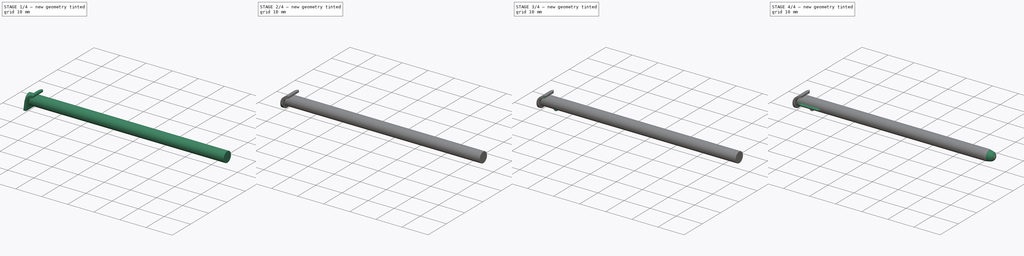
[diagram: build sequence overview — one tinted view per stage of 4, left to right]
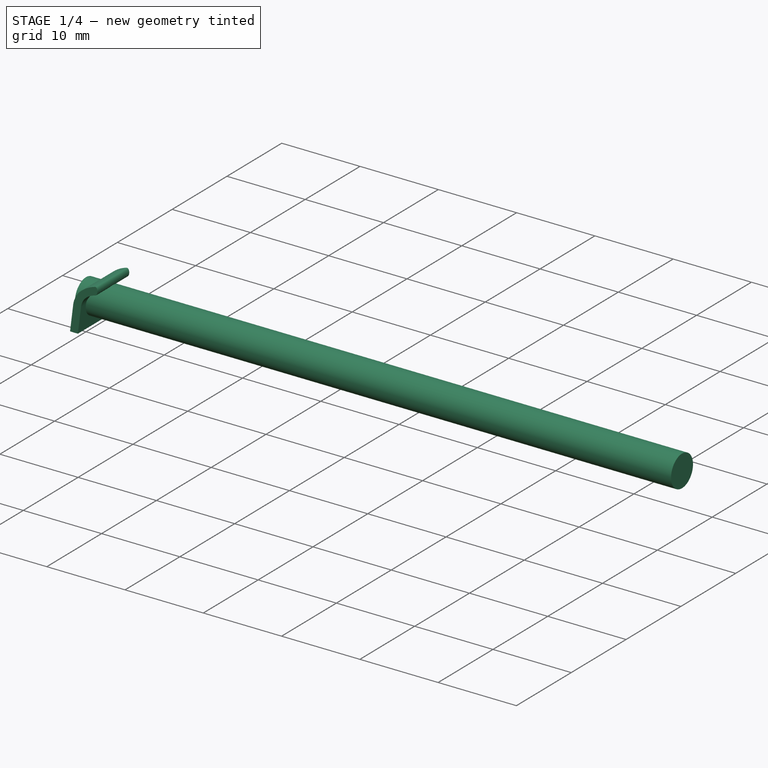
[diagram: stage 1 of 4 — iso view after this stage's code; geometry added in this stage tinted green]
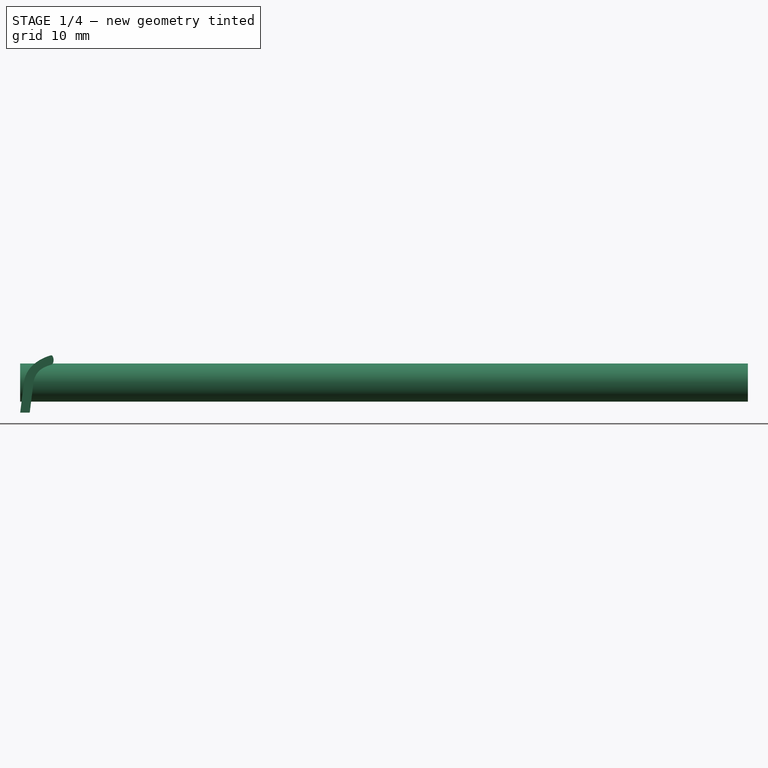
[diagram: stage 1 of 4 — front view after this stage's code; geometry added in this stage tinted green]
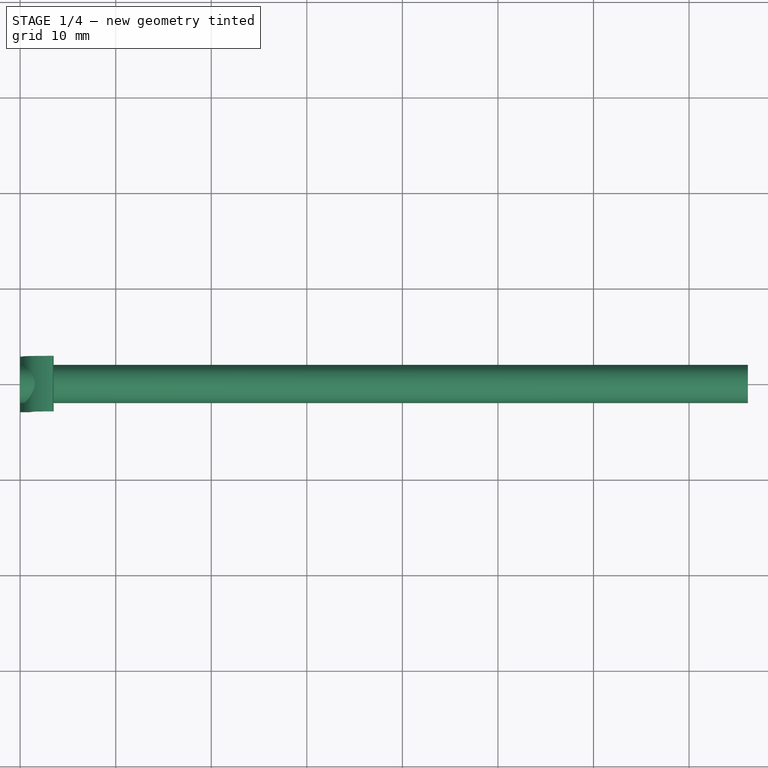
[diagram: stage 1 of 4 — top view after this stage's code; geometry added in this stage tinted green]
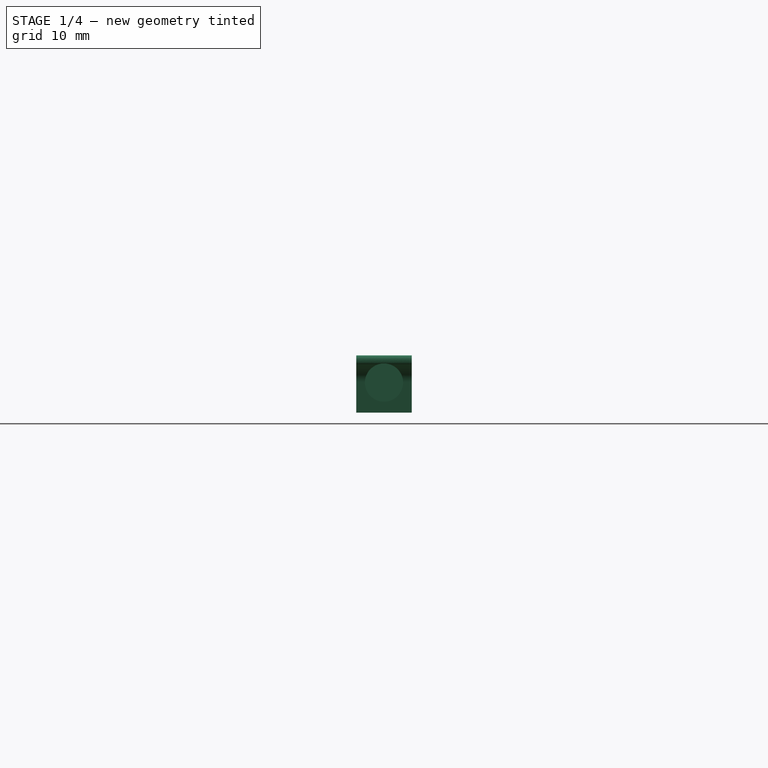
[diagram: stage 1 of 4 — right view after this stage's code; geometry added in this stage tinted green]
FCSTD DOCUMENT  (FreeCAD 1.0R39109 (Git))
Label: New 3DS Stylus
License: Creative Commons Attribution-NonCommercial-ShareAlike
LicenseURL: http://creativecommons.org/licenses/by-nc-sa/4.0/
objects: Sketcher::SketchObject×8, PartDesign::Pocket×4, PartDesign::Pad×3, PartDesign::Fillet×1, PartDesign::Groove×1, PartDesign::Body×1
note: 44 computed .brp shape members not serialized (recipe doc carries the construction recipe); baked Part::Feature solids carry a one-line shape summary decoded from their .brp

FEATURE [Sketcher::SketchObject] Sketch
  ArcFitTolerance = 0
  AttachmentSupport = -> [YZ_Plane]
  FullyConstrained = true
  MakeInternals = false
  MapMode = 5
  Placement = pos=(0,0,0) rot=(0.57735,0.57735,0.57735;2.0944rad)
  sketch-geometry (1):
    g0: Circle CenterX=0 CenterY=0 CenterZ=0 NormalX=0 NormalY=0 NormalZ=1 AngleXU=0 Radius=2
  constraints (2):
    c: Coincident(g0,g-1)
    c: Diameter(g0) = 4
FEATURE [PartDesign::Pad] Pad
  Direction = (1,0,0)
  Length = 76.15
  Length2 = 10
  Placement = pos=(0,0,0) rot=(0.57735,0.57735,0.57735;2.0944rad)
  Profile = -> Sketch
  ReferenceAxis = -> Sketch [N_Axis]
  Suppressed = false
  Type = 0
FEATURE [Sketcher::SketchObject] Sketch001
  ArcFitTolerance = 0
  AttachmentSupport = -> [XZ_Plane]
  ExternalGeometry = -> [Pad]
  FullyConstrained = true
  MakeInternals = false
  MapMode = 5
  Placement = pos=(0,0,0) rot=(1,0,0;1.5708rad)
  sketch-geometry (24):
    g0: LineSegment StartX=0 StartY=-3.15 StartZ=0 EndX=1 EndY=-3.15 EndZ=0
    g1: LineSegment [constr] StartX=1.1e-15 StartY=-2 StartZ=0 EndX=0 EndY=-3.15 EndZ=0
    g2: LineSegment [constr] StartX=-9e-16 StartY=2 StartZ=0 EndX=10 EndY=2 EndZ=0
    g3: LineSegment [constr] StartX=0 StartY=-3.15 StartZ=0 EndX=-5e-16 EndY=0.85 EndZ=0
    g4: LineSegment [constr] StartX=-5e-16 StartY=0.85 StartZ=0 EndX=0.5 EndY=0.85 EndZ=0
    g5: LineSegment [constr] StartX=0.5 StartY=0.85 StartZ=0 EndX=1.5 EndY=0.85 EndZ=0
    g6: LineSegment [constr] StartX=0 StartY=-3.15 StartZ=0 EndX=0.5 EndY=0.85 EndZ=0
    g7: LineSegment [constr] StartX=1 StartY=-3.15 StartZ=0 EndX=1.5 EndY=0.85 EndZ=0
    g8: ArcOfCircle [constr] CenterX=4.24663 CenterY=-1.855 CenterZ=0 NormalX=0 NormalY=0 NormalZ=1 AngleXU=0 Radius=3.855 StartAngle=1.5708 EndAngle=2.36383
    g9: LineSegment [constr] StartX=4.24663 StartY=2 StartZ=0 EndX=4.24663 EndY=3 EndZ=0
    g10: ArcOfCircle [constr] CenterX=4.40547 CenterY=-1.61627 CenterZ=0 NormalX=0 NormalY=0 NormalZ=1 AngleXU=0 Radius=4.619 StartAngle=1.60519 EndAngle=2.57834
    g11: LineSegment StartX=0 StartY=-3.15 StartZ=0 EndX=0.393875 EndY=0.00100004 EndZ=0
    g12: LineSegment StartX=1 StartY=-3.15 StartZ=0 EndX=1.39807 EndY=0.0345675 EndZ=0
    g13: ArcOfCircle CenterX=3.38263 CenterY=-0.213502 CenterZ=0 NormalX=0 NormalY=0 NormalZ=1 AngleXU=0 Radius=2 StartAngle=2.0553 EndAngle=3.01724
    g14: ArcOfCircle CenterX=3.37071 CenterY=-0.371104 CenterZ=0 NormalX=0 NormalY=0 NormalZ=1 AngleXU=0 Radius=3 StartAngle=2.26417 EndAngle=3.01724
    g15: LineSegment [constr] StartX=3.49663 StartY=2.36153 StartZ=0 EndX=4.24663 EndY=2.36153 EndZ=0
    g16: ArcOfCircle CenterX=4.24663 CenterY=-1.855 CenterZ=0 NormalX=0 NormalY=0 NormalZ=1 AngleXU=0 Radius=3.855 StartAngle=1.82439 EndAngle=2.0553
    g17: ArcOfCircle CenterX=4.40547 CenterY=-1.61627 CenterZ=0 NormalX=0 NormalY=0 NormalZ=1 AngleXU=0 Radius=4.619 StartAngle=1.83197 EndAngle=2.26417
    g18: LineSegment [constr] StartX=3.49663 StartY=2.36153 StartZ=0 EndX=3.24663 EndY=2.36153 EndZ=0
    g19: ArcOfEllipse CenterX=3.24663 CenterY=2.36153 CenterZ=0 NormalX=0 NormalY=0 NormalZ=1 MajorRadius=0.489064 MinorRadius=0.25 AngleXU=-1.5708 StartAngle=0.131718 EndAngle=3.27738
    g20: LineSegment [constr] StartX=3.24663 StartY=1.87247 StartZ=0 EndX=3.24663 EndY=2.8506 EndZ=0
    g21: LineSegment [constr] StartX=3.49663 StartY=2.36153 StartZ=0 EndX=2.99663 EndY=2.36153 EndZ=0
    g22: GeomPoint [constr] X=3.24663 Y=1.94119 Z=0
    g23: GeomPoint [constr] X=3.24663 Y=2.78187 Z=0
  constraints (59):
    c: PointOnObject(g0,g-2)
    c: Horizontal(g0)
    c: Distance(g0) = 1
    c: Coincident(g1,g-3)
    c: Coincident(g1,g0)
    c: Distance(g1) = 1.15
    c: Coincident(g2,g-3)
    c: Horizontal(g2)
    c: Coincident(g3,g0)
    c: PointOnObject(g3,g-3)
    c: Distance(g3) = 4
    c: Coincident(g4,g3)
    c: Horizontal(g4)
    c: Distance(g4) = 0.5
    c: Coincident(g5,g4)
    c: Horizontal(g5)
    c: Distance(g5) = 1
    c: Coincident(g6,g0)
    c: Coincident(g6,g4)
    c: Coincident(g7,g0)
    c: Coincident(g7,g5)
    c: Coincident(g8,g7)
    c: Diameter(g8) = 7.71
    c: Tangent(g8,g2) = 1.5708
    c: Coincident(g9,g8)
    c: Vertical(g9)
    c: Coincident(g10,g6)
    c: Coincident(g10,g9)
    c: Distance(g9) = 1
    c: Radius(g10) = 4.619
    c: Coincident(g11,g0)
    c: Coincident(g12,g0)
    c: Tangent(g12,g13) = 1.5708
    c: Tangent(g11,g14) = 1.5708
    c: Radius(g13) = 2
    c: Radius(g14) = 3
    c: PointOnObject(g11,g6)
    c: PointOnObject(g12,g7)
    c: PointOnObject(g17,g10)
    c: PointOnObject(g16,g8)
    c: PointOnObject(g15,g9)
    c: Horizontal(g15)
    c: Distance(g15) = 0.75
    c: PointOnObject(g14,g10)
    c: PointOnObject(g13,g8)
    c: Equal(g17,g10)
    c: Equal(g16,g8)
    c: Tangent(g16,g13) = -1.5708
    c: Tangent(g17,g14) = -1.5708
    c: Coincident(g18,g15)
    c: Horizontal(g18)
    c: Distance(g18) = 0.25
    c: InternalAlignment(g20-g23 -> g19) x4
    c: Coincident(g19,g18)
    c: PointOnObject(g15,g19)
    c: Tangent(g19,g16) = 1.5708
    c: Tangent(g19,g17) = -1.5708
    c: Vertical(g20)
    c: Distance(g2) = 10
FEATURE [PartDesign::Pad] Pad001
  BaseFeature = -> Pad
  Direction = (0,-1,2e-16)
  Length = 2.9
  Length2 = 2.9
  Placement = pos=(0,0,0) rot=(0.57735,0.57735,0.57735;2.0944rad)
  Profile = -> Sketch001
  ReferenceAxis = -> Sketch001 [N_Axis]
  Refine = true
  Suppressed = false
  Type = 4
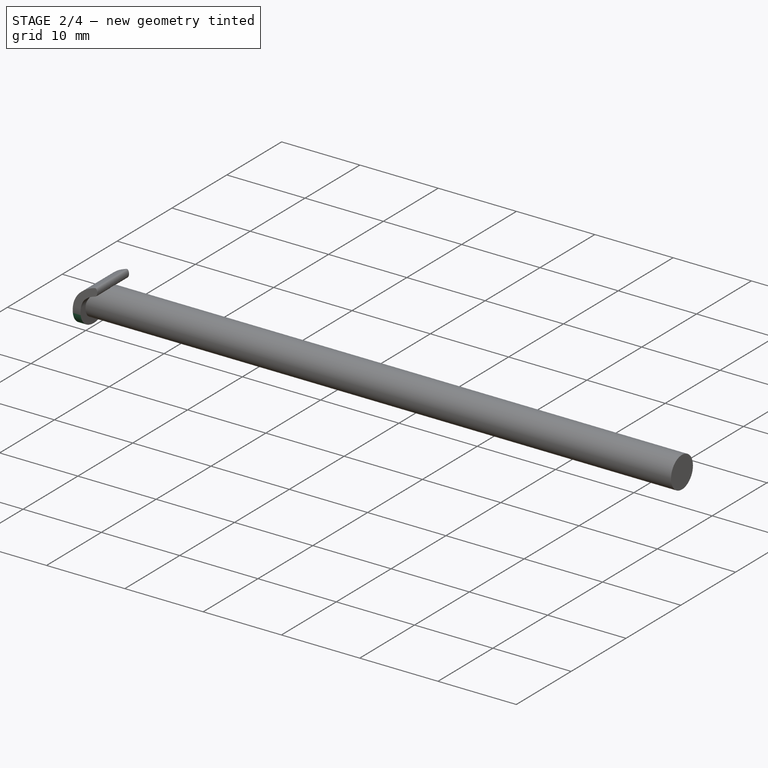
[diagram: stage 2 of 4 — iso view after this stage's code; geometry added in this stage tinted green]
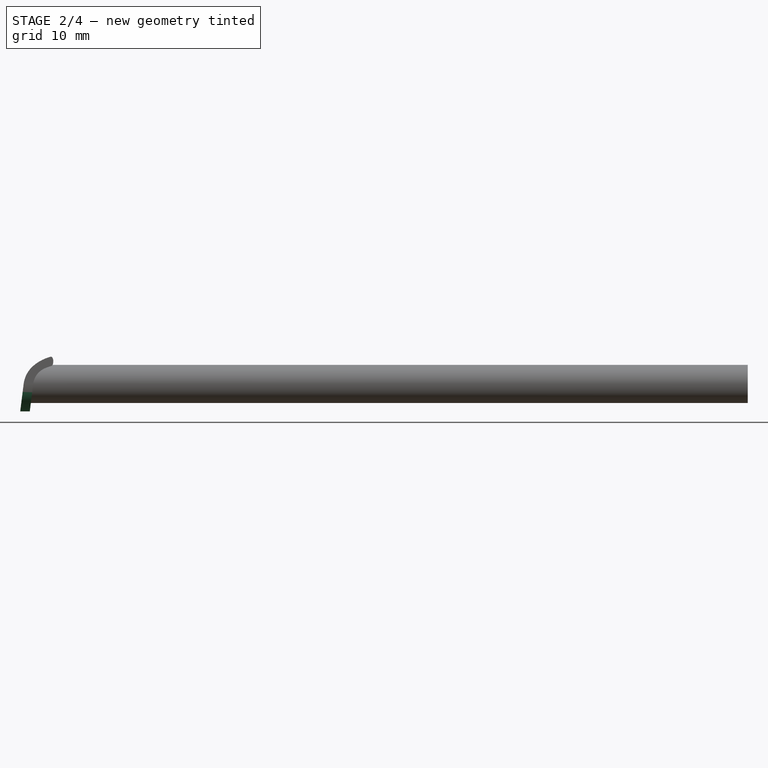
[diagram: stage 2 of 4 — front view after this stage's code; geometry added in this stage tinted green]
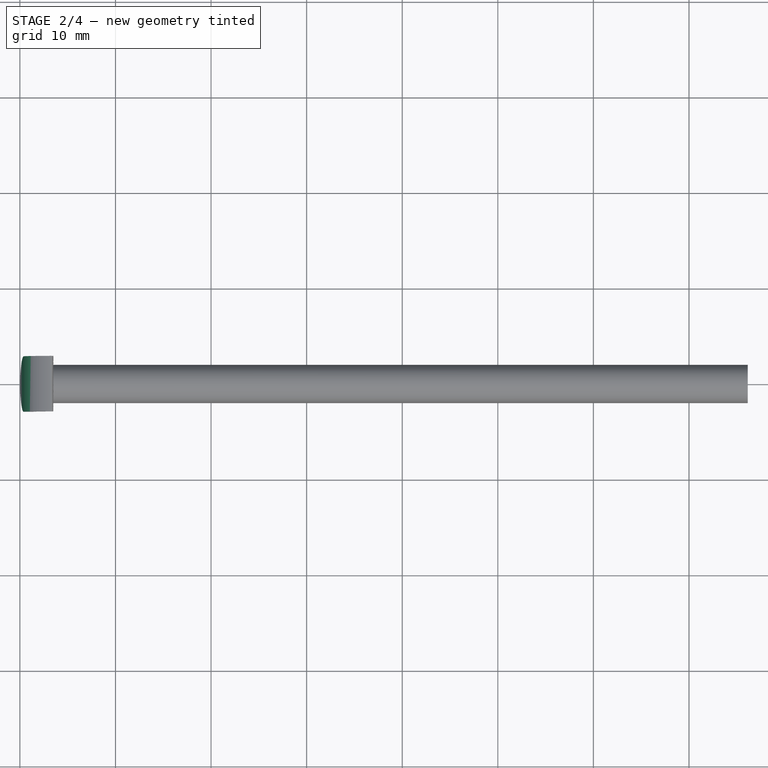
[diagram: stage 2 of 4 — top view after this stage's code; geometry added in this stage tinted green]
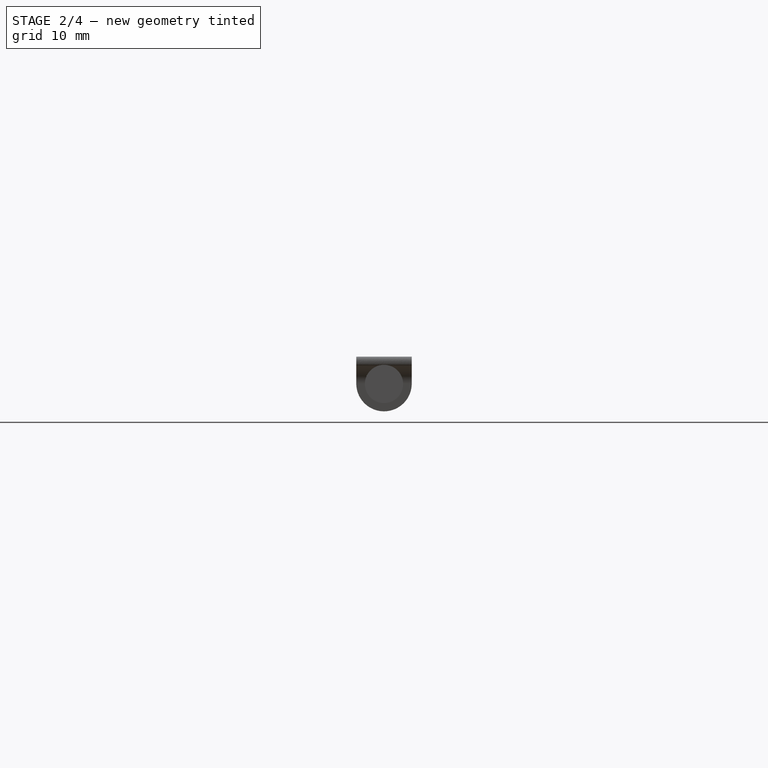
[diagram: stage 2 of 4 — right view after this stage's code; geometry added in this stage tinted green]
FEATURE [Sketcher::SketchObject] Sketch002
  ArcFitTolerance = 0
  AttachmentSupport = -> [Pad001]
  ExternalGeometry = -> [Pad001]
  FullyConstrained = true
  MakeInternals = false
  MapMode = 5
  Placement = pos=(0,-2.9,1e-15) rot=(0.57735,0.57735,-0.57735;2.0944rad)
  sketch-geometry (6):
    g0: ArcOfCircle CenterX=1.61627 CenterY=4.40547 CenterZ=0 NormalX=0 NormalY=0 NormalZ=1 AngleXU=0 Radius=4.619 StartAngle=3.40276 EndAngle=3.83497
    g1: ArcOfCircle CenterX=0.371104 CenterY=3.37071 CenterZ=0 NormalX=0 NormalY=0 NormalZ=1 AngleXU=0 Radius=3 StartAngle=3.83497 EndAngle=4.58803
    g2: LineSegment StartX=-0.00100004 StartY=0.393875 StartZ=0 EndX=3.15 EndY=1.1e-15 EndZ=0
    g3: LineSegment StartX=3.15 StartY=1.1e-15 StartZ=0 EndX=3.15 EndY=-1 EndZ=0
    g4: LineSegment StartX=3.15 StartY=-1 StartZ=0 EndX=-2.84609 EndY=-1 EndZ=0
    g5: LineSegment StartX=-2.84609 StartY=-1 StartZ=0 EndX=-2.84609 EndY=3.21279 EndZ=0
  constraints (16):
    c: Coincident(g0,g-6)
    c: Coincident(g0,g-6)
    c: Coincident(g1,g0)
    c: Coincident(g1,g-5)
    c: Coincident(g2,g1)
    c: Coincident(g2,g-4)
    c: Coincident(g3,g2)
    c: Vertical(g3)
    c: Coincident(g4,g3)
    c: Horizontal(g4)
    c: Coincident(g5,g4)
    c: Coincident(g5,g0)
    c: Vertical(g5)
    c: Distance(g3) = 1
    c: Equal(g1,g-5)
    c: Equal(g0,g-6)
FEATURE [PartDesign::Pocket] Pocket
  BaseFeature = -> Pad001
  Direction = (0,1,0)
  Length = 10
  Length2 = 5
  Placement = pos=(0,0,0) rot=(0.57735,0.57735,0.57735;2.0944rad)
  Profile = -> Sketch002
  ReferenceAxis = -> Sketch002 [N_Axis]
  Refine = true
  Suppressed = false
  Type = 0
FEATURE [Sketcher::SketchObject] Sketch003
  ArcFitTolerance = 0
  AttachmentSupport = -> [YZ_Plane]
  ExternalGeometry = -> [Pocket]
  FullyConstrained = true
  MakeInternals = false
  MapMode = 5
  Placement = pos=(0,0,0) rot=(0.57735,0.57735,0.57735;2.0944rad)
  sketch-geometry (5):
    g0: Circle [constr] CenterX=-5.07e-14 CenterY=2.54e-14 CenterZ=0 NormalX=0 NormalY=0 NormalZ=1 AngleXU=0 Radius=2.9
    g1: LineSegment StartX=-2.9 StartY=0.0345675 StartZ=0 EndX=-2.9 EndY=-3.15 EndZ=0
    g2: LineSegment StartX=-2.9 StartY=-3.15 StartZ=0 EndX=2.9 EndY=-3.15 EndZ=0
    g3: LineSegment StartX=2.9 StartY=-3.15 StartZ=0 EndX=2.9 EndY=0.0345675 EndZ=0
    g4: ArcOfCircle CenterX=-1e-16 CenterY=0.0345847 CenterZ=0 NormalX=0 NormalY=0 NormalZ=1 AngleXU=0 Radius=2.9 StartAngle=3.1416 EndAngle=6.28318
  constraints (11):
    c: Coincident(g0,g-7)
    c: Tangent(g0,g-4)
    c: Coincident(g1,g-6)
    c: Coincident(g1,g-3)
    c: Coincident(g2,g1)
    c: Coincident(g2,g-4)
    c: Coincident(g3,g2)
    c: Coincident(g3,g-5)
    c: Coincident(g4,g1)
    c: Coincident(g4,g3)
    c: Equal(g4,g0)
FEATURE [PartDesign::Pocket] Pocket001
  BaseFeature = -> Pocket
  Direction = (-1,0,0)
  Length = 5
  Length2 = 5
  Placement = pos=(0,0,0) rot=(0.57735,0.57735,0.57735;2.0944rad)
  Profile = -> Sketch003
  ReferenceAxis = -> Sketch003 [N_Axis]
  Reversed = true
  Suppressed = false
  Type = 0
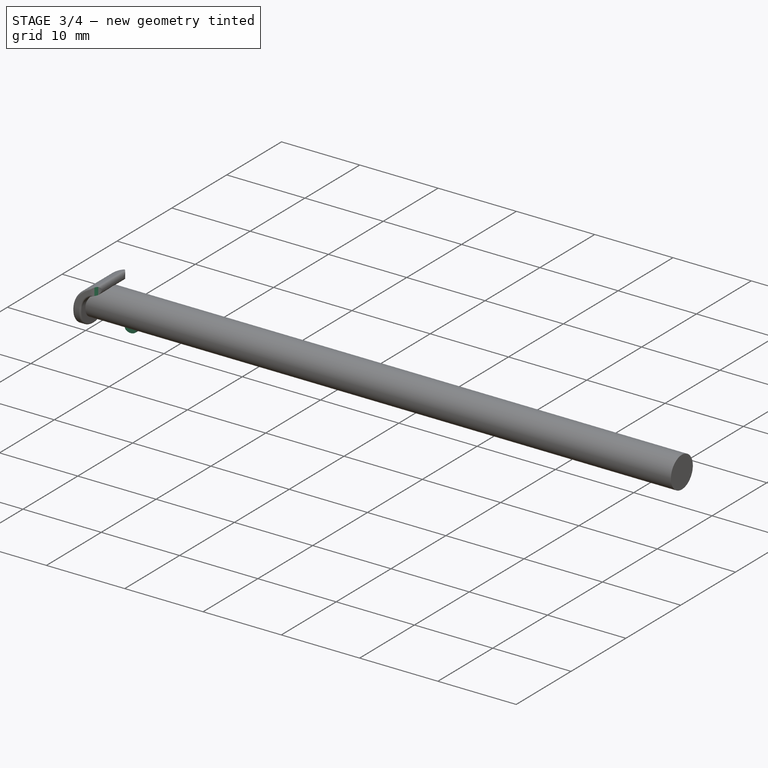
[diagram: stage 3 of 4 — iso view after this stage's code; geometry added in this stage tinted green]
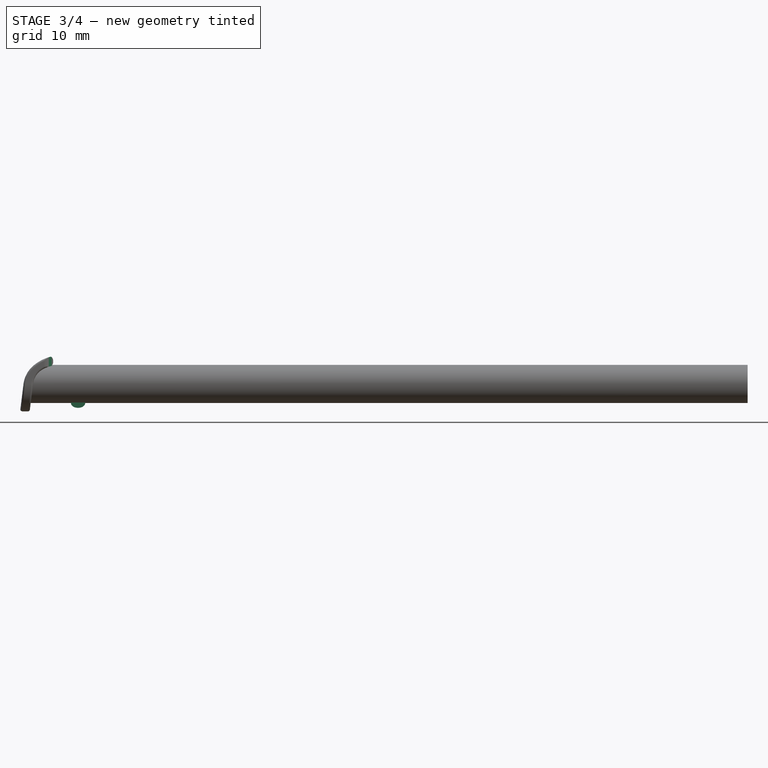
[diagram: stage 3 of 4 — front view after this stage's code; geometry added in this stage tinted green]
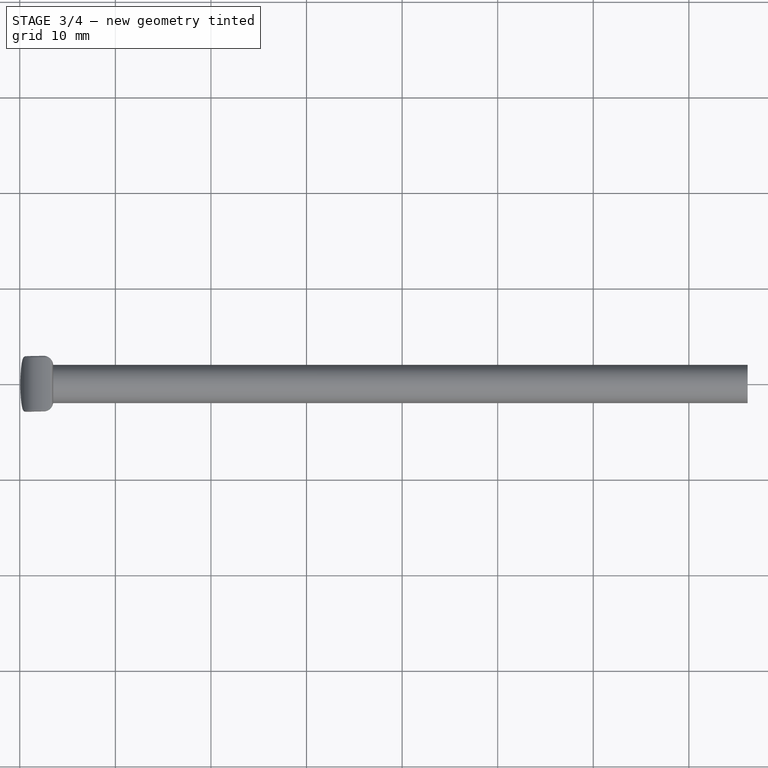
[diagram: stage 3 of 4 — top view after this stage's code; geometry added in this stage tinted green]
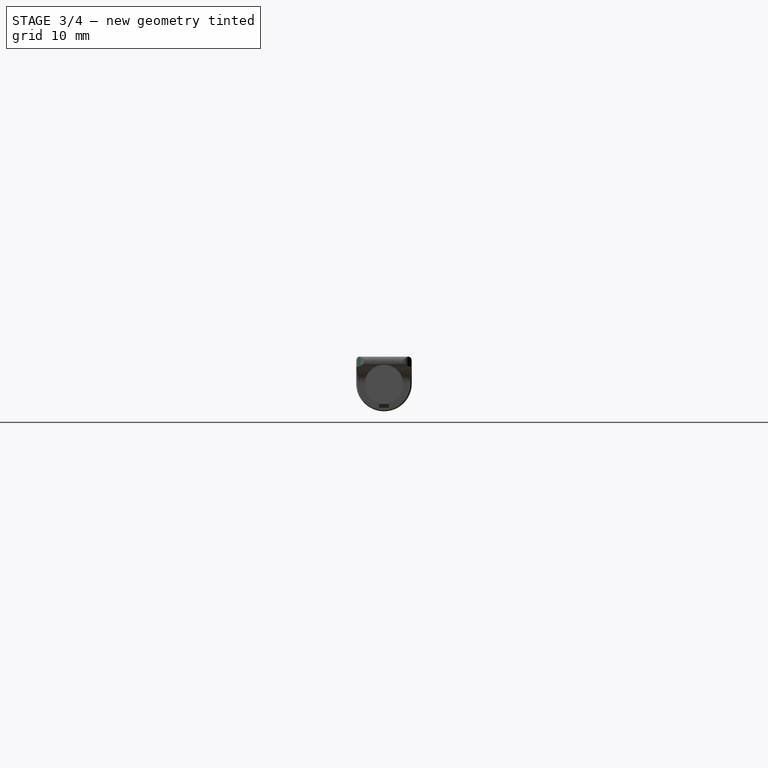
[diagram: stage 3 of 4 — right view after this stage's code; geometry added in this stage tinted green]
FEATURE [Sketcher::SketchObject] Sketch004
  ArcFitTolerance = 0
  AttachmentSupport = -> [XY_Plane]
  ExternalGeometry = -> [Pocket001]
  FullyConstrained = true
  MakeInternals = false
  MapMode = 5
  sketch-geometry (7):
    g0: LineSegment [constr] StartX=3.49663 StartY=2.9 StartZ=0 EndX=3.49663 EndY=-2.9 EndZ=0
    g1: ArcOfCircle CenterX=2.49663 CenterY=1.9 CenterZ=0 NormalX=0 NormalY=0 NormalZ=1 AngleXU=0 Radius=1 StartAngle=1e-16 EndAngle=1.5708
    g2: ArcOfCircle CenterX=2.49663 CenterY=-1.9 CenterZ=0 NormalX=0 NormalY=0 NormalZ=1 AngleXU=0 Radius=1 StartAngle=4.71239 EndAngle=6.28319
    g3: LineSegment StartX=2.49663 StartY=2.9 StartZ=0 EndX=3.49663 EndY=2.9 EndZ=0
    g4: LineSegment StartX=3.49663 StartY=2.9 StartZ=0 EndX=3.49663 EndY=1.9 EndZ=0
    g5: LineSegment StartX=3.49663 StartY=-1.9 StartZ=0 EndX=3.49663 EndY=-2.9 EndZ=0
    g6: LineSegment StartX=3.49663 StartY=-2.9 StartZ=0 EndX=2.49663 EndY=-2.9 EndZ=0
  constraints (18):
    c: Coincident(g0,g-5)
    c: Coincident(g0,g-4)
    c: Tangent(g2,g0) = 1.5708
    c: Tangent(g2,g-3) = 1.5708
    c: Tangent(g1,g-6) = -1.5708
    c: Tangent(g1,g0) = 1.5708
    c: Radius(g1) = 1
    c: Equal(g1,g2)
    c: Coincident(g3,g1)
    c: Coincident(g3,g0)
    c: Coincident(g4,g3)
    c: Coincident(g4,g1)
    c: Coincident(g5,g2)
    c: Coincident(g5,g0)
    c: Vertical(g5)
    c: Tangent(g5,g2)
    c: Coincident(g6,g5)
    c: Coincident(g6,g2)
FEATURE [PartDesign::Fillet] Fillet
  Base = -> Pocket001 [Edge4]
  BaseFeature = -> Pocket001
  Placement = pos=(0,0,0) rot=(0.57735,0.57735,0.57735;2.0944rad)
  Radius = 0.2
  SupportTransform = false
  Suppressed = false
  UseAllEdges = false
FEATURE [PartDesign::Pocket] Pocket002
  BaseFeature = -> Fillet
  Direction = (0,0,-1)
  Length = 5
  Length2 = -1
  Placement = pos=(0,0,0) rot=(0.57735,0.57735,0.57735;2.0944rad)
  Profile = -> Sketch004
  ReferenceAxis = -> Sketch004 [N_Axis]
  Reversed = true
  Suppressed = false
  Type = 4
FEATURE [Sketcher::SketchObject] Sketch005
  ArcFitTolerance = 0
  AttachmentSupport = -> [XZ_Plane]
  ExternalGeometry = -> [Pocket002]
  FullyConstrained = true
  MakeInternals = false
  MapMode = 5
  Placement = pos=(0,0,0) rot=(1,0,0;1.5708rad)
  sketch-geometry (9):
    g0: LineSegment [constr] StartX=0 StartY=0 StartZ=0 EndX=6.85 EndY=0 EndZ=0
    g1: LineSegment [constr] StartX=6.85 StartY=0 StartZ=0 EndX=6.85 EndY=-2 EndZ=0
    g2: LineSegment [constr] StartX=6.85 StartY=-2 StartZ=0 EndX=5.35 EndY=-2 EndZ=0
    g3: LineSegment [constr] StartX=5.35 StartY=-2 StartZ=0 EndX=1.14375 EndY=-2 EndZ=0
    g4: Ellipse CenterX=6.1 CenterY=-2 CenterZ=0 NormalX=0 NormalY=0 NormalZ=1 MajorRadius=0.75 MinorRadius=0.5 AngleXU=2e-15
    g5: LineSegment [constr] StartX=6.85 StartY=-2 StartZ=0 EndX=5.35 EndY=-2 EndZ=0
    g6: LineSegment [constr] StartX=6.1 StartY=-1.5 StartZ=0 EndX=6.1 EndY=-2.5 EndZ=0
    g7: GeomPoint [constr] X=6.65902 Y=-2 Z=0
    g8: GeomPoint [constr] X=5.54098 Y=-2 Z=0
  constraints (15):
    c: Coincident(g0,g-1)
    c: PointOnObject(g0,g-1)
    c: Coincident(g1,g0)
    c: Vertical(g1)
    c: Coincident(g2,g1)
    c: Horizontal(g2)
    c: Coincident(g3,g2)
    c: Coincident(g3,g-3)
    c: Horizontal(g3)
    c: Distance(g0) = 6.85
    c: InternalAlignment(g5-g8 -> g4) x4
    c: Symmetric(g2,g1,g4)
    c: Distance(g5) = 1.5
    c: Distance(g6) = 1
    c: Coincident(g5,g1)
FEATURE [PartDesign::Pad] Pad002
  BaseFeature = -> Pocket002
  Direction = (0,-1,2e-16)
  Length = 0.5
  Length2 = 0.5
  Placement = pos=(0,0,0) rot=(0.57735,0.57735,0.57735;2.0944rad)
  Profile = -> Sketch005
  ReferenceAxis = -> Sketch005 [N_Axis]
  Refine = true
  Suppressed = false
  Type = 4
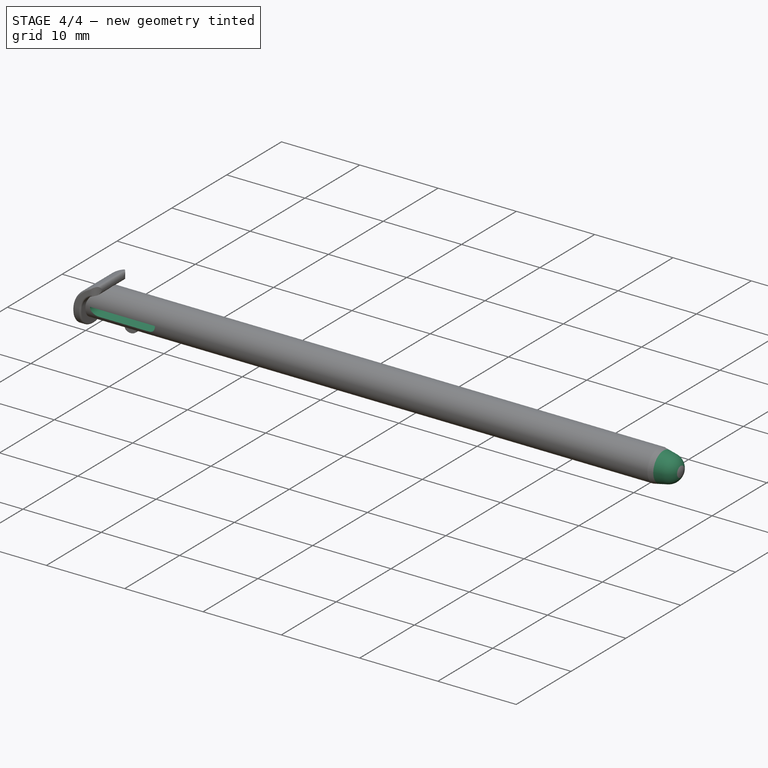
[diagram: stage 4 of 4 — iso view after this stage's code; geometry added in this stage tinted green]
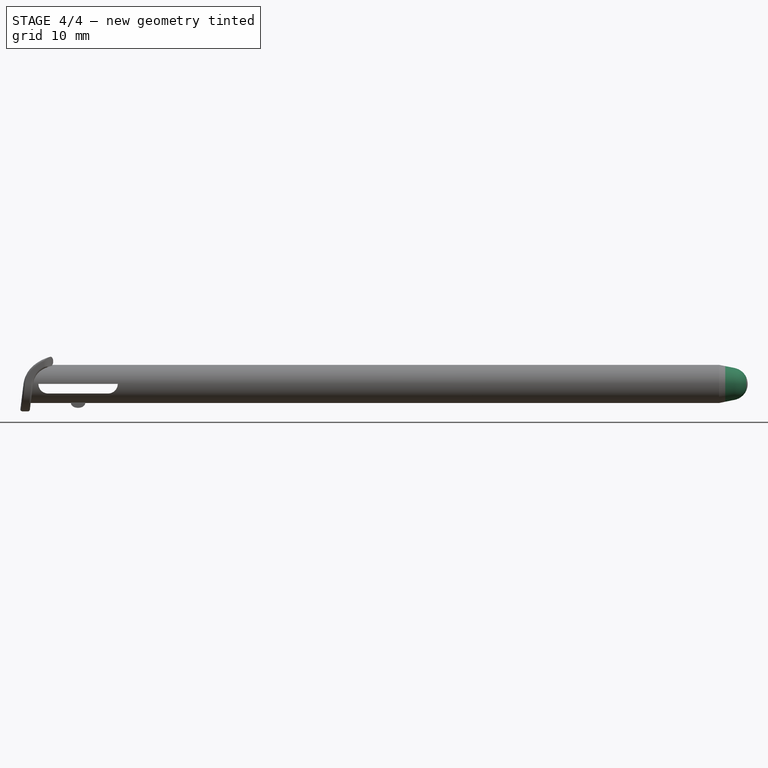
[diagram: stage 4 of 4 — front view after this stage's code; geometry added in this stage tinted green]
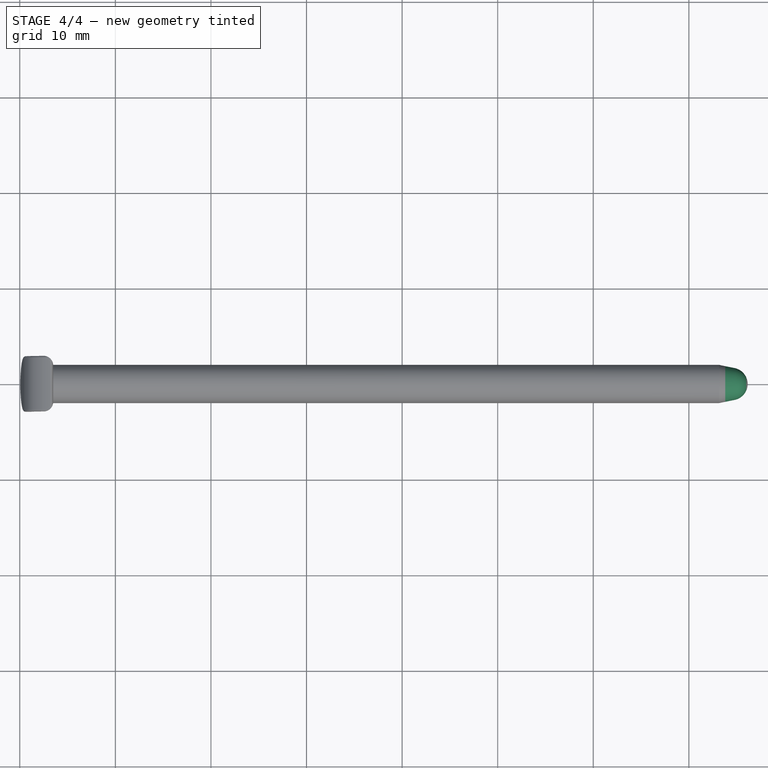
[diagram: stage 4 of 4 — top view after this stage's code; geometry added in this stage tinted green]
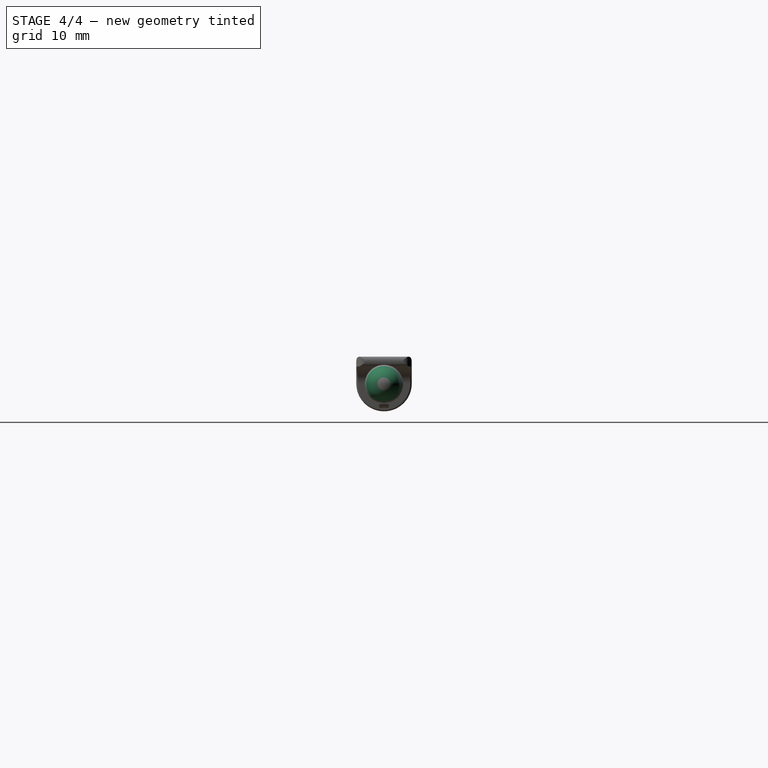
[diagram: stage 4 of 4 — right view after this stage's code; geometry added in this stage tinted green]
FEATURE [Sketcher::SketchObject] Sketch006
  ArcFitTolerance = 0
  AttachmentSupport = -> [Pad002]
  ExternalGeometry = -> [Pad002]
  FullyConstrained = true
  MakeInternals = false
  MapMode = 5
  Placement = pos=(0,2.9,-4.8e-15) rot=(0.57735,0.57735,0.57735;4.18879rad)
  sketch-geometry (8):
    g0: LineSegment [constr] StartX=-2 StartY=6.1 StartZ=0 EndX=-1 EndY=6.1 EndZ=0
    g1: ArcOfCircle [constr] CenterX=0 CenterY=2.95 CenterZ=0 NormalX=0 NormalY=0 NormalZ=1 AngleXU=0 Radius=1 StartAngle=3.14159 EndAngle=6.28319
    g2: ArcOfCircle [constr] CenterX=0 CenterY=9.25 CenterZ=0 NormalX=0 NormalY=0 NormalZ=1 AngleXU=0 Radius=1 StartAngle=2e-16 EndAngle=3.14159
    g3: LineSegment [constr] StartX=1 StartY=2.95 StartZ=0 EndX=1 EndY=9.25 EndZ=0
    g4: LineSegment StartX=-1 StartY=9.25 StartZ=0 EndX=-1 EndY=2.95 EndZ=0
    g5: LineSegment StartX=1e-16 StartY=10.25 StartZ=0 EndX=1e-16 EndY=1.95 EndZ=0
    g6: ArcOfCircle CenterX=2.18731e-11 CenterY=2.95 CenterZ=0 NormalX=0 NormalY=0 NormalZ=1 AngleXU=0 Radius=1 StartAngle=3.14159 EndAngle=4.71239
    g7: ArcOfCircle CenterX=0 CenterY=9.25 CenterZ=0 NormalX=0 NormalY=0 NormalZ=1 AngleXU=0 Radius=1 StartAngle=1.5708 EndAngle=3.14159
  constraints (22):
    c: Coincident(g0,g-3)
    c: Horizontal(g0)
    c: Distance(g0) = 1
    c: Tangent(g1,g3) = -1.5708
    c: Tangent(g3,g2) = -1.5708
    c: Tangent(g2,g4) = -1.5708
    c: Tangent(g4,g1) = -1.5708
    c: Equal(g1,g2)
    c: PointOnObject(g1,g-2)
    c: PointOnObject(g2,g-2)
    c: Symmetric(g4,g4,g0)
    c: Distance(g4) = 6.3
    c: PointOnObject(g5,g2)
    c: PointOnObject(g5,g1)
    c: Vertical(g5)
    c: PointOnObject(g1,g5)
    c: Coincident(g6,g4)
    c: Coincident(g6,g5)
    c: Coincident(g7,g4)
    c: Coincident(g7,g5)
    c: Equal(g7,g2)
    c: Equal(g6,g1)
FEATURE [PartDesign::Pocket] Pocket003
  BaseFeature = -> Pad002
  Direction = (1e-16,-1,1.4e-15)
  Length = 10
  Length2 = 5
  Placement = pos=(0,0,0) rot=(0.57735,0.57735,0.57735;2.0944rad)
  Profile = -> Sketch006
  ReferenceAxis = -> Sketch006 [N_Axis]
  Refine = true
  Suppressed = false
  Type = 0
FEATURE [Sketcher::SketchObject] Sketch007
  ArcFitTolerance = 0
  AttachmentSupport = -> [XZ_Plane]
  ExternalGeometry = -> [Pocket003]
  FullyConstrained = true
  MakeInternals = false
  MapMode = 5
  Placement = pos=(0,0,0) rot=(1,0,0;1.5708rad)
  sketch-geometry (6):
    g0: ArcOfCircle CenterX=74.45 CenterY=8.05e-14 CenterZ=0 NormalX=0 NormalY=0 NormalZ=1 AngleXU=0 Radius=1.7 StartAngle=0 EndAngle=1.36968
    g1: LineSegment StartX=76.15 StartY=2 StartZ=0 EndX=73.15 EndY=2 EndZ=0
    g2: LineSegment StartX=73.15 StartY=2 StartZ=0 EndX=74.7896 EndY=1.66574 EndZ=0
    g3: LineSegment StartX=76.15 StartY=2 StartZ=0 EndX=77.15 EndY=2 EndZ=0
    g4: LineSegment StartX=76.15 StartY=8.05e-14 StartZ=0 EndX=77.15 EndY=8.05e-14 EndZ=0
    g5: LineSegment StartX=77.15 StartY=8.05e-14 StartZ=0 EndX=77.15 EndY=2 EndZ=0
  constraints (16):
    c: Tangent(g0,g-3) = -1.5708
    c: Symmetric(g-3,g-3,g0)
    c: Coincident(g1,g-3)
    c: Horizontal(g1)
    c: Distance(g1) = 3
    c: Diameter(g0) = 3.4
    c: Coincident(g2,g1)
    c: Tangent(g2,g0) = 1.5708
    c: Coincident(g3,g1)
    c: Horizontal(g3)
    c: Coincident(g4,g0)
    c: Horizontal(g4)
    c: Coincident(g5,g4)
    c: Coincident(g5,g3)
    c: Vertical(g5)
    c: Distance(g3) = 1
FEATURE [PartDesign::Groove] Groove
  Angle = 360
  Angle2 = 60
  Axis = (1,0,0)
  Base = (0,0,0)
  BaseFeature = -> Pocket003
  Placement = pos=(0,0,0) rot=(0.57735,0.57735,0.57735;2.0944rad)
  Profile = -> Sketch007
  ReferenceAxis = -> Sketch007 [H_Axis]
  Refine = true
  Reversed = true
  Suppressed = false
  Type = 0
FEATURE [PartDesign::Body] Body  label="New Nintendo 3DS Stylus"
  AllowCompound = false
  Group = -> [Sketch,Pad,Sketch001,Pad001,Sketch002,Pocket,Sketch003,Pocket001,Sketch004,Fillet,Pocket002,Sketch005,Pad002,Sketch006,Pocket003,Sketch007,Groove]
  Origin = -> Origin
  Tip = -> Groove
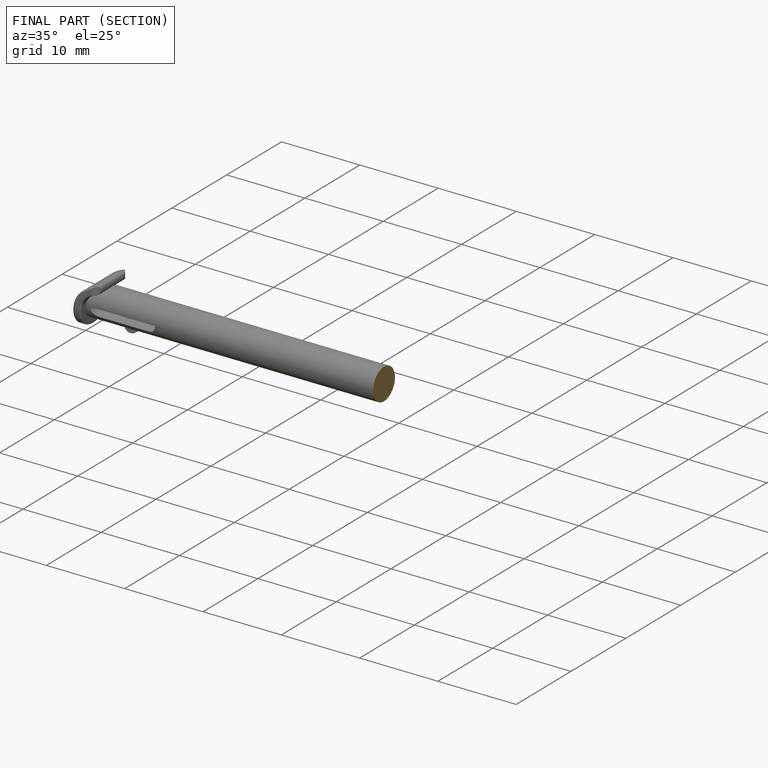
[diagram: finished part — half-section view (interior)]
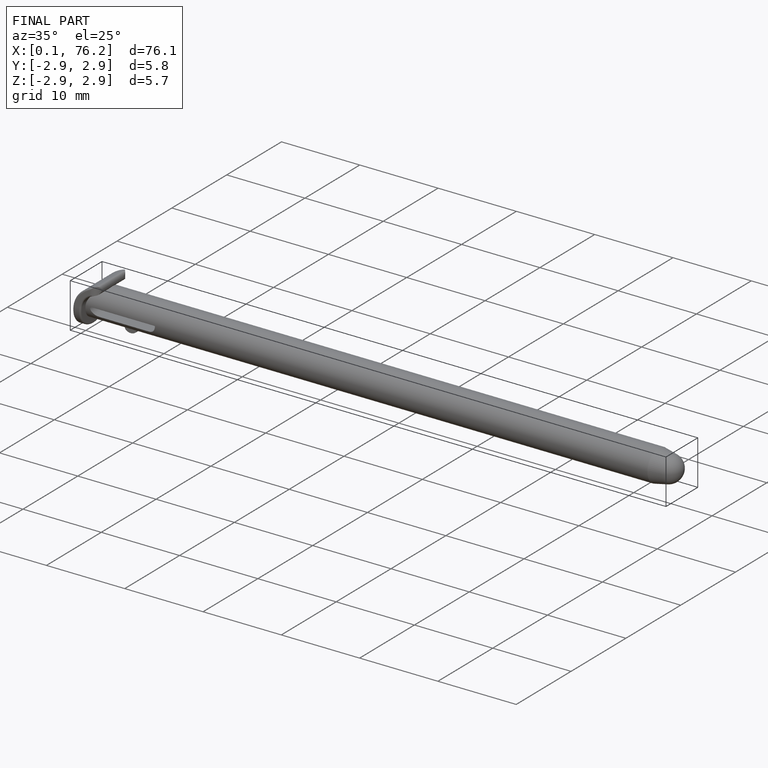
[diagram: finished part — iso view with bounding-box wireframe]
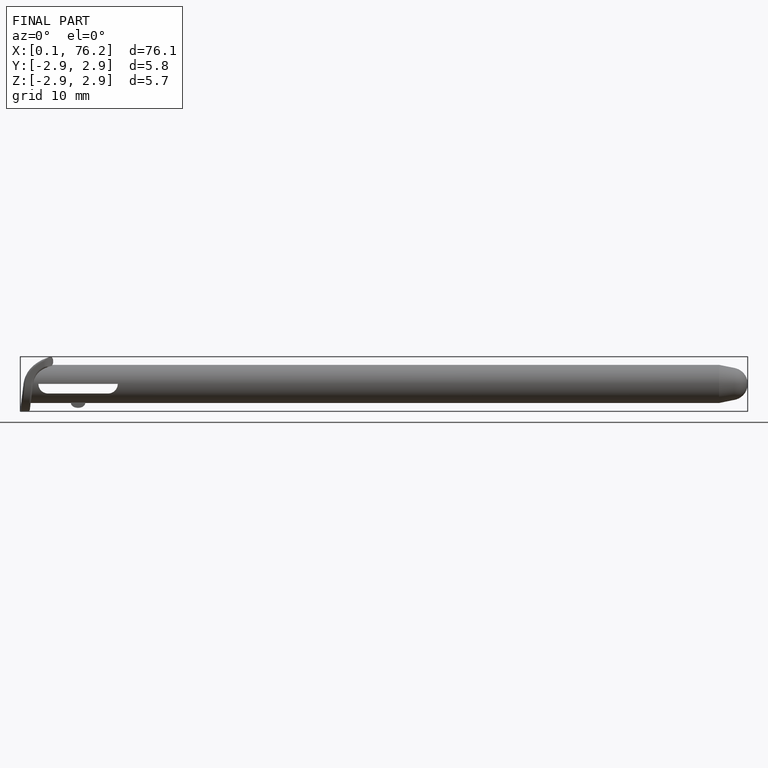
[diagram: finished part — front view with bounding-box wireframe]
